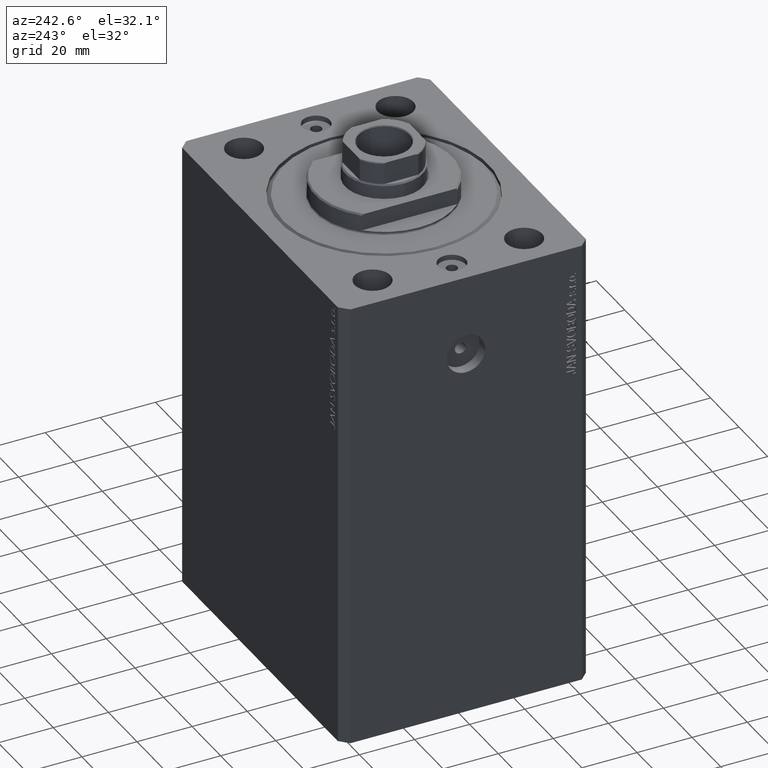
[diagram: clean part render]
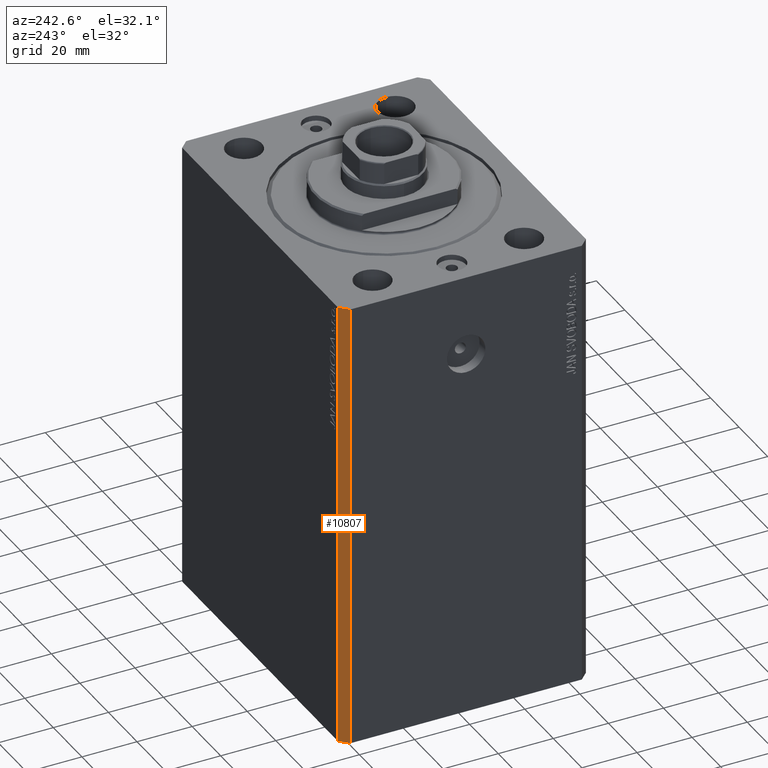
[diagram: same view with one face highlighted and labeled with its STEP entity id]
A machine part, auxiliary view. The second image highlights one B-rep face of the part: STEP entity #10807.
In plain terms, the highlighted planar face has unit normal (-0.7071, 0.7071, 0).
Its self-contained STEP definition (entity closure, byte-faithful):
#439 = CARTESIAN_POINT ( 'NONE',  ( -57.49999999999998579, 42.00000000000000711, -165.0000000000000000 ) ) ;
#746 = ORIENTED_EDGE ( 'NONE', *, *, #4713, .F. ) ;
#2336 = ORIENTED_EDGE ( 'NONE', *, *, #44448, .T. ) ;
#3137 = VECTOR ( 'NONE', #42704, 1000.000000000000000 ) ;
#4713 = EDGE_CURVE ( 'NONE', #34496, #37902, #25409, .T. ) ;
#5038 = FACE_OUTER_BOUND ( 'NONE', #10338, .T. ) ;
#7266 = CARTESIAN_POINT ( 'NONE',  ( -54.49999999999999289, 45.00000000000000000, -165.0000000000000000 ) ) ;
#8638 = PLANE ( 'NONE',  #12614 ) ;
#8711 = ORIENTED_EDGE ( 'NONE', *, *, #32708, .F. ) ;
#10338 = EDGE_LOOP ( 'NONE', ( #8711, #746, #24958, #2336 ) ) ;
#10766 = LINE ( 'NONE', #11641, #30637 ) ;
#10807 = ADVANCED_FACE ( 'NONE', ( #5038 ), #8638, .T. ) ;
#11641 = CARTESIAN_POINT ( 'NONE',  ( -54.49999999999999289, 45.00000000000000000, 0.000000000000000000 ) ) ;
#12614 = AXIS2_PLACEMENT_3D ( 'NONE', #18754, #28653, #32447 ) ;
#13030 = CARTESIAN_POINT ( 'NONE',  ( -54.49999999999999289, 45.00000000000000000, 0.000000000000000000 ) ) ;
#18588 = VERTEX_POINT ( 'NONE', #24427 ) ;
#18754 = CARTESIAN_POINT ( 'NONE',  ( -54.49999999999999289, 45.00000000000000000, -165.0000000000000000 ) ) ;
#21192 = DIRECTION ( 'NONE',  ( -0.7071067811865483499, -0.7071067811865466846, 0.000000000000000000 ) ) ;
#23679 = LINE ( 'NONE', #7266, #37786 ) ;
#24427 = CARTESIAN_POINT ( 'NONE',  ( -57.49999999999998579, 42.00000000000000711, 0.000000000000000000 ) ) ;
#24958 = ORIENTED_EDGE ( 'NONE', *, *, #31292, .T. ) ;
#25409 = LINE ( 'NONE', #32824, #3137 ) ;
#28653 = DIRECTION ( 'NONE',  ( -0.7071067811865466846, 0.7071067811865483499, 0.000000000000000000 ) ) ;
#29954 = VECTOR ( 'NONE', #36395, 1000.000000000000000 ) ;
#30637 = VECTOR ( 'NONE', #35027, 1000.000000000000000 ) ;
#31292 = EDGE_CURVE ( 'NONE', #34496, #42546, #23679, .T. ) ;
#32447 = DIRECTION ( 'NONE',  ( -0.7071067811865483499, -0.7071067811865466846, 0.000000000000000000 ) ) ;
#32708 = EDGE_CURVE ( 'NONE', #37902, #18588, #10766, .T. ) ;
#32824 = CARTESIAN_POINT ( 'NONE',  ( -54.49999999999999289, 45.00000000000000000, -165.0000000000000000 ) ) ;
#34496 = VERTEX_POINT ( 'NONE', #42920 ) ;
#35027 = DIRECTION ( 'NONE',  ( -0.7071067811865483499, -0.7071067811865466846, 0.000000000000000000 ) ) ;
#36395 = DIRECTION ( 'NONE',  ( 0.000000000000000000, 0.000000000000000000, 1.000000000000000000 ) ) ;
#37786 = VECTOR ( 'NONE', #21192, 1000.000000000000000 ) ;
#37902 = VERTEX_POINT ( 'NONE', #13030 ) ;
#39092 = CARTESIAN_POINT ( 'NONE',  ( -57.49999999999998579, 42.00000000000000711, -165.0000000000000000 ) ) ;
#41793 = LINE ( 'NONE', #39092, #29954 ) ;
#42546 = VERTEX_POINT ( 'NONE', #439 ) ;
#42704 = DIRECTION ( 'NONE',  ( 0.000000000000000000, 0.000000000000000000, 1.000000000000000000 ) ) ;
#42920 = CARTESIAN_POINT ( 'NONE',  ( -54.49999999999999289, 45.00000000000000000, -165.0000000000000000 ) ) ;
#44448 = EDGE_CURVE ( 'NONE', #42546, #18588, #41793, .T. ) ;